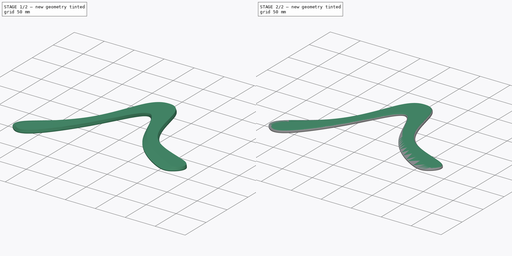
[diagram: build sequence overview — one tinted view per stage of 2, left to right]
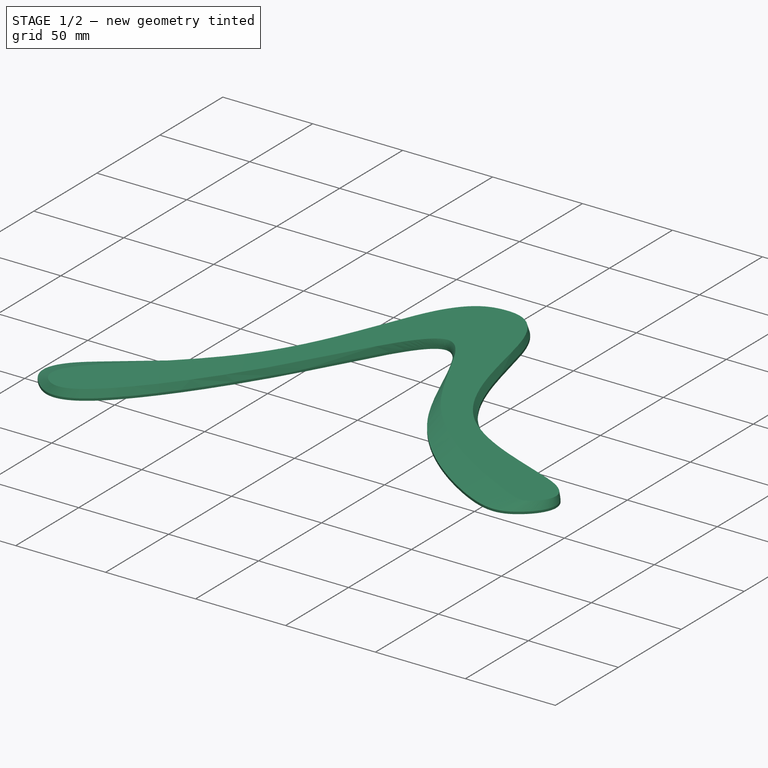
[diagram: stage 1 of 2 — iso view after this stage's code; geometry added in this stage tinted green]
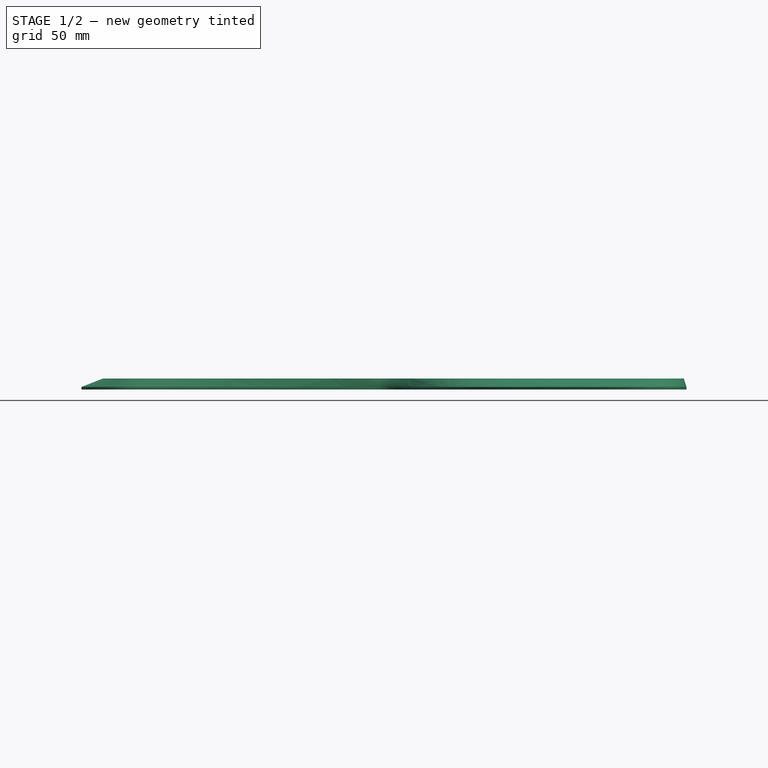
[diagram: stage 1 of 2 — front view after this stage's code; geometry added in this stage tinted green]
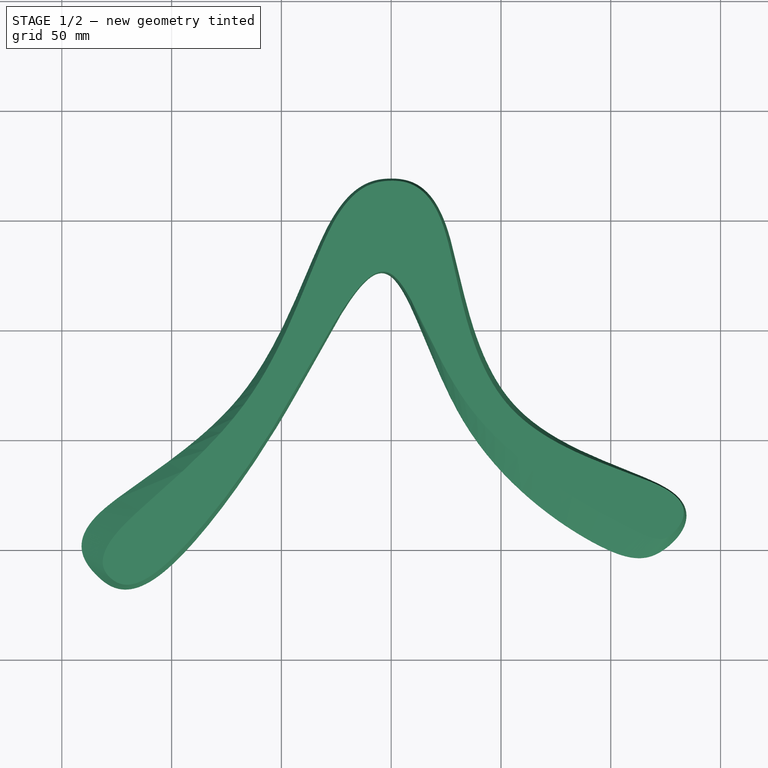
[diagram: stage 1 of 2 — top view after this stage's code; geometry added in this stage tinted green]
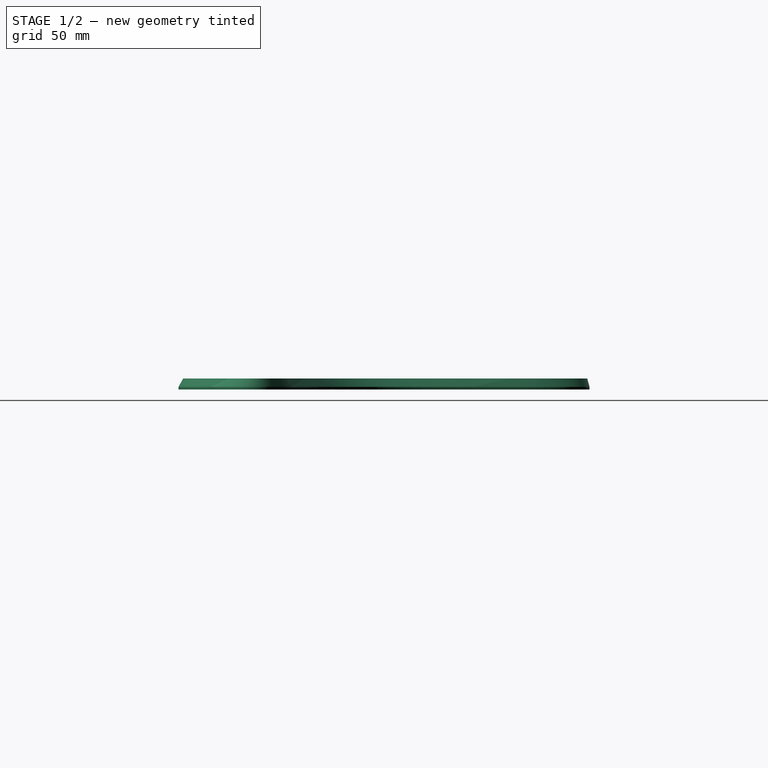
[diagram: stage 1 of 2 — right view after this stage's code; geometry added in this stage tinted green]
FCSTD DOCUMENT  (FreeCAD 1.0R39319 (Git))
Label: splinebased-3-refactored
License: All rights reserved
LicenseURL: https://en.wikipedia.org/wiki/All_rights_reserved
objects: PartDesign::SubShapeBinder×2, Sketcher::SketchObject×1, Spreadsheet::Sheet×1, PartDesign::AdditiveLoft×1, PartDesign::Pad×1, PartDesign::Fillet×1, PartDesign::Body×1
note: 14 computed .brp shape members not serialized (recipe doc carries the construction recipe); baked Part::Feature solids carry a one-line shape summary decoded from their .brp

FEATURE [Sketcher::SketchObject] Sketch  label="Outlines"
  ArcFitTolerance = 1e-06
  AttachmentSupport = -> [XY_Plane]
  FullyConstrained = false
  MakeInternals = false
  MapMode = 5
  sketch-geometry (62):
    g0: LineSegment [constr] StartX=0 StartY=0 StartZ=0 EndX=-114.715 EndY=-163.83 EndZ=0
    g1: LineSegment [constr] StartX=0 StartY=0 StartZ=0 EndX=103.244 EndY=-147.447 EndZ=0
    g2-g15: Circle [constr] x14 (B-spline internal-alignment scaffolding for g16; pole/knot coordinates omitted)
    g16: BSplineCurve PolesCount=14 KnotsCount=15 Degree=3 IsPeriodic=1
    g17-g31: GeomPoint [constr] x15 (B-spline internal-alignment scaffolding for g16; pole/knot coordinates omitted)
    g32-g45: Circle [constr] x14 (B-spline internal-alignment scaffolding for g46; pole/knot coordinates omitted)
    g46: BSplineCurve PolesCount=14 KnotsCount=15 Degree=3 IsPeriodic=1
    g47-g61: GeomPoint [constr] x15 (B-spline internal-alignment scaffolding for g46; pole/knot coordinates omitted)
  constraints (17):
    c: Coincident(g0,g-1)
    c: Coincident(g1,g-1)
    c: Distance(g0) = 200
    c: Distance(g1) = 180
    c: Angle(g0,g1) = 1.22173
    c: Angle(g-2,g0) = 2.53073
    c: PointOnObject(g2,g-2)
    c: Weight(g2) = 1
    c: Equal(g2, g3-g9) x7
    c: PointOnObject(g9,g-2)
    c: Equal(g2, g10-g15) x6
    c: InternalAlignment(g2-g15 -> g16) x14
    c: InternalAlignment(g17-g31 -> g16) x15
    c: Weight(g32) = 1
    c: Equal(g32, g33-g45) x13
    c: InternalAlignment(g32-g45 -> g46) x14
    c: InternalAlignment(g47-g61 -> g46) x15
FEATURE [Spreadsheet::Sheet] Spreadsheet  label="Vars"
  cells = A1='thickness; B1(thickness)==5 mm; A2='bottom thicknness; B2(bottom_thickness)==1.2 mm; A3='top thickness; B3(top_thickness)==thickness - bottom_thickness; A4='airfoil radius; B4(airfoil_radius)==4 mm
FEATURE [PartDesign::SubShapeBinder] Binder  label="Outline"
  BindCopyOnChange = 0
  BindMode = 0
  ClaimChildren = false
  Context = -> Body [Binder.]
  Fuse = false
  MakeFace = true
  OffsetFill = false
  OffsetIntersection = false
  OffsetJoinType = 0
  OffsetOpenResult = false
  PartialLoad = false
  Placement = pos=(0,0,1.2) rot=(0,0,1;0rad)
  Refine = true
  Relative = true
  Support = -> [Sketch[Edge1]]
  _Version = 2
  expr: .Placement.Base.z = <<Vars>>.bottom_thickness
FEATURE [PartDesign::SubShapeBinder] Binder001  label="TopOutline"
  BindCopyOnChange = 0
  BindMode = 0
  ClaimChildren = false
  Context = -> Body [Binder001.]
  Fuse = false
  MakeFace = true
  OffsetFill = false
  OffsetIntersection = false
  OffsetJoinType = 0
  OffsetOpenResult = false
  PartialLoad = false
  Placement = pos=(0,0,5) rot=(0,0,1;0rad)
  Refine = true
  Relative = true
  Support = -> [Sketch[Edge2]]
  _Version = 2
  expr: .Placement.Base.z = <<Vars>>.thickness
FEATURE [PartDesign::AdditiveLoft] AdditiveLoft  label="BoomerangLoft"
  Closed = false
  Placement = pos=(0,0,1.2) rot=(0,0,1;0rad)
  Profile = -> Binder [Face1]
  Refine = true
  Ruled = false
  Sections = -> [Binder001]
  Suppressed = false
FEATURE [PartDesign::Pad] Pad  label="BottomPad"
  BaseFeature = -> AdditiveLoft
  Direction = (0,0,-1)
  Length = 1.2
  Length2 = 10
  Placement = pos=(0,0,1.2) rot=(0,0,1;0rad)
  Profile = -> AdditiveLoft [Face1]
  Refine = true
  Suppressed = false
  Type = 0
  expr: Length = <<Vars>>.bottom_thickness
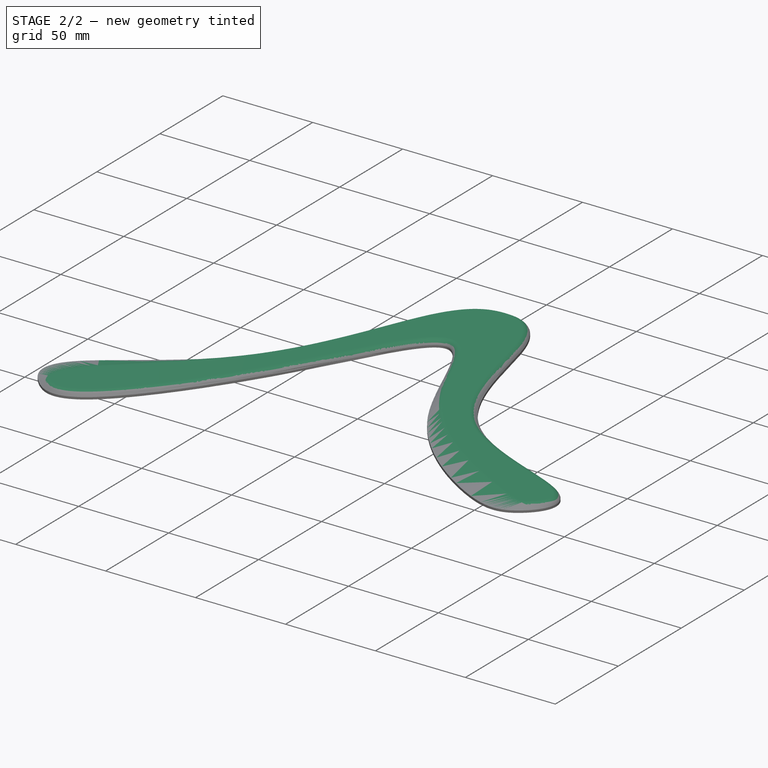
[diagram: stage 2 of 2 — iso view after this stage's code; geometry added in this stage tinted green]
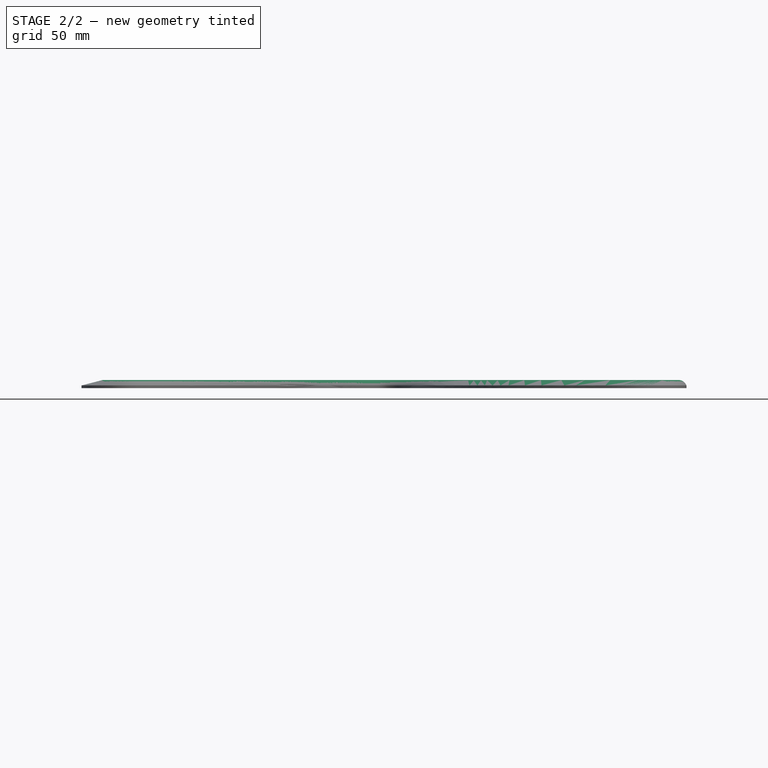
[diagram: stage 2 of 2 — front view after this stage's code; geometry added in this stage tinted green]
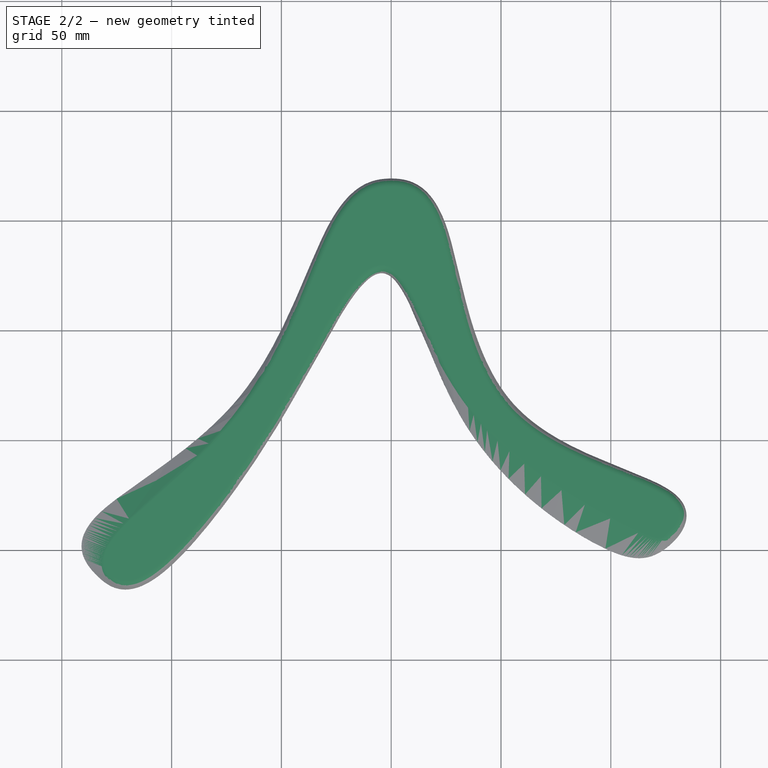
[diagram: stage 2 of 2 — top view after this stage's code; geometry added in this stage tinted green]
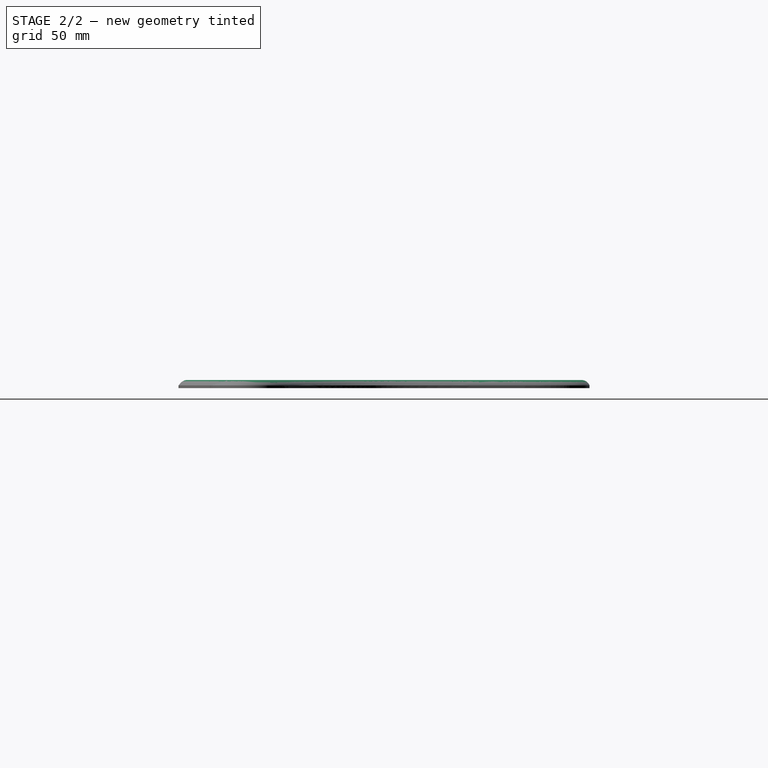
[diagram: stage 2 of 2 — right view after this stage's code; geometry added in this stage tinted green]
FEATURE [PartDesign::Fillet] Fillet  label="AirfoilFillet"
  Base = -> Pad [Face4]
  BaseFeature = -> Pad
  Placement = pos=(0,0,1.2) rot=(0,0,1;0rad)
  Radius = 4
  Refine = true
  SupportTransform = false
  Suppressed = false
  UseAllEdges = false
  expr: Radius = <<Vars>>.airfoil_radius
FEATURE [PartDesign::Body] Body  label="Boomerang Body"
  AllowCompound = false
  Group = -> [Sketch,Binder,Binder001,AdditiveLoft,Pad,Fillet]
  Origin = -> Origin
  Tip = -> Fillet
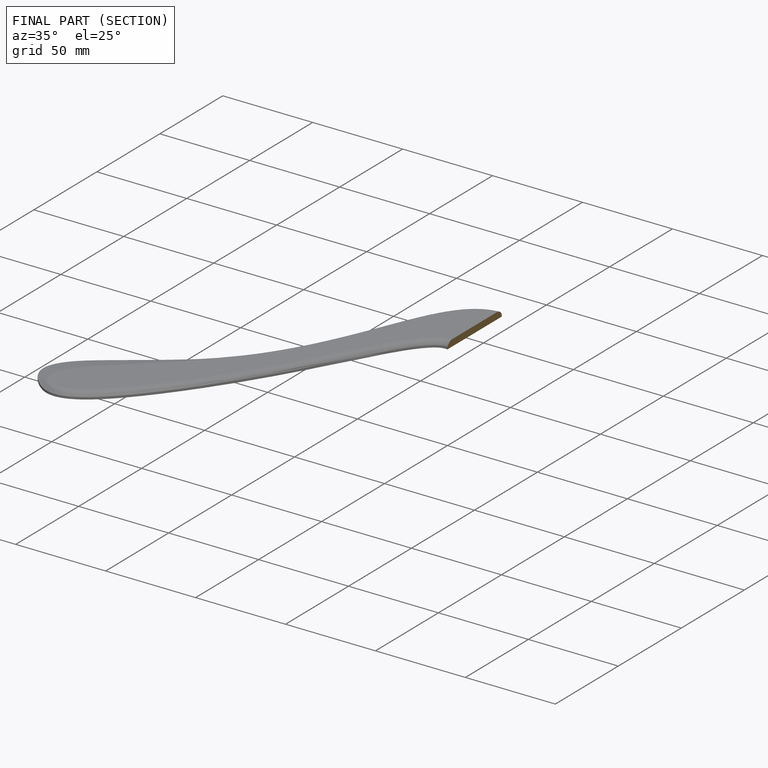
[diagram: finished part — half-section view (interior)]
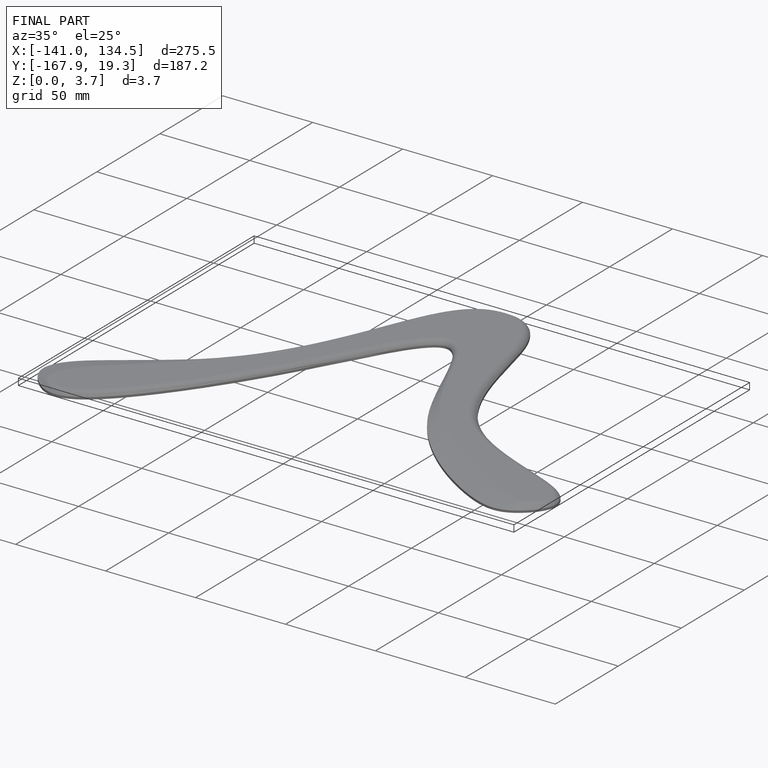
[diagram: finished part — iso view with bounding-box wireframe]
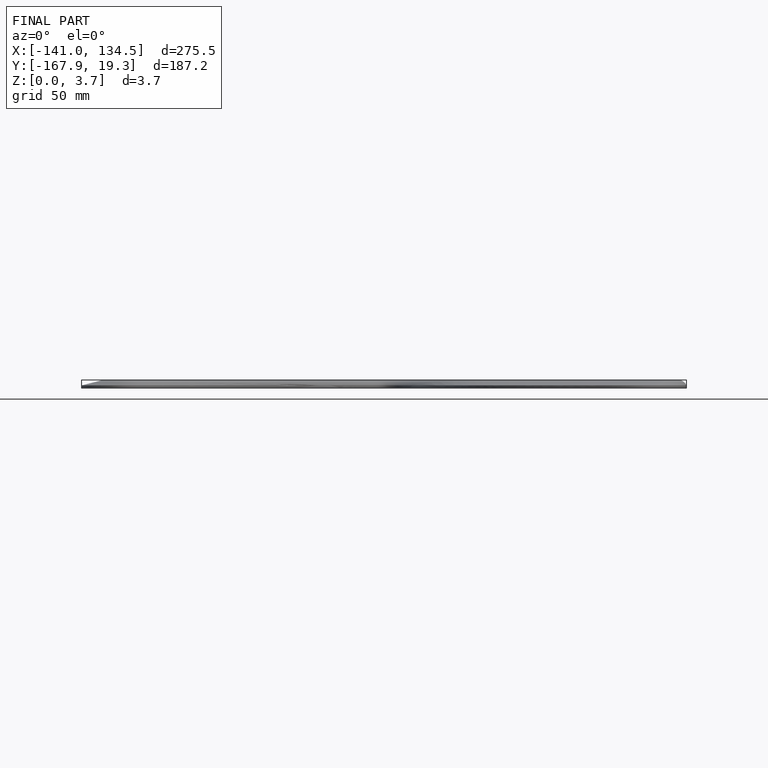
[diagram: finished part — front view with bounding-box wireframe]
